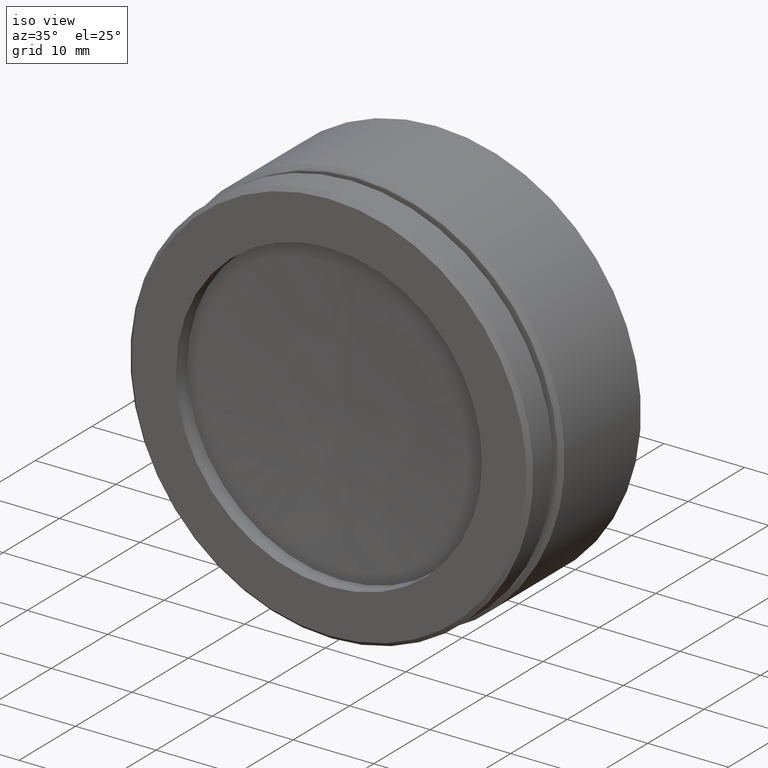
[diagram: clean part render]
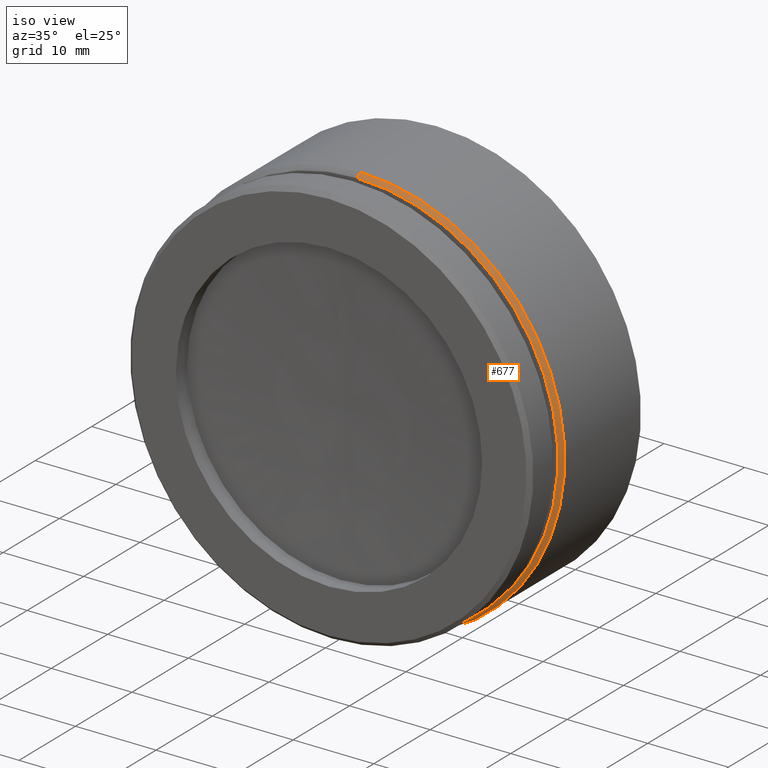
[diagram: same view with one face highlighted and labeled with its STEP entity id]
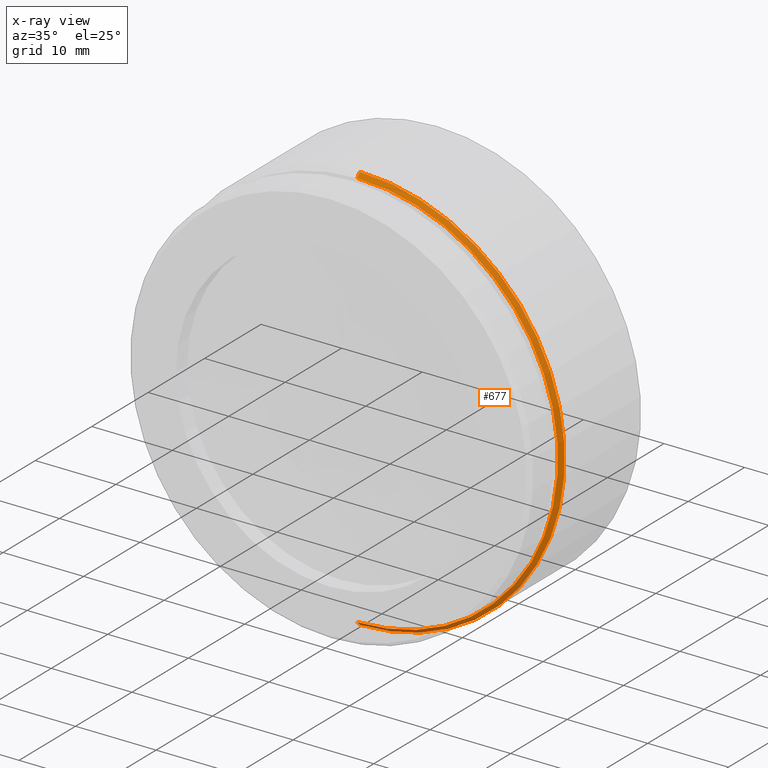
[diagram: x-ray of the same camera — body ghosted, the highlighted face saturated]
A machine part, iso view. The second image highlights one B-rep face of the part: STEP entity #677.
The next image is the same camera in x-ray: the body ghosted, the highlighted face saturated — about 0% of this face is hidden behind the body in this view.
In plain terms, the highlighted conical surface has half-angle 45 deg.
Its self-contained STEP definition (entity closure, byte-faithful):
#13 = CARTESIAN_POINT ( 'NONE',  ( -8.905217641199666190, -15.41880613057825222, 26.65036394347453097 ) ) ;
#60 = DIRECTION ( 'NONE',  ( 0.000000000000000000, 0.000000000000000000, 1.000000000000000000 ) ) ;
#115 = AXIS2_PLACEMENT_3D ( 'NONE', #563, #1100, #1616 ) ;
#132 = ORIENTED_EDGE ( 'NONE', *, *, #1614, .T. ) ;
#195 = FACE_OUTER_BOUND ( 'NONE', #1185, .T. ) ;
#208 = VECTOR ( 'NONE', #1315, 1000.000000000000114 ) ;
#254 = DIRECTION ( 'NONE',  ( 0.000000000000000000, -1.000000000000000000, 0.000000000000000000 ) ) ;
#416 = VERTEX_POINT ( 'NONE', #529 ) ;
#446 = ORIENTED_EDGE ( 'NONE', *, *, #572, .T. ) ;
#517 = LINE ( 'NONE', #528, #208 ) ;
#528 = CARTESIAN_POINT ( 'NONE',  ( -8.905217641199666190, -15.91880613057825045, 51.55036394347452955 ) ) ;
#529 = CARTESIAN_POINT ( 'NONE',  ( -8.905217641199666190, -15.91880613057825045, 51.55036394347452955 ) ) ;
#545 = DIRECTION ( 'NONE',  ( 0.000000000000000000, 0.000000000000000000, -1.000000000000000000 ) ) ;
#563 = CARTESIAN_POINT ( 'NONE',  ( -8.905217641199666190, -15.91880613057825045, 26.65036394347453097 ) ) ;
#569 = CARTESIAN_POINT ( 'NONE',  ( -8.905217641199666190, -15.91880613057825045, 26.65036394347453097 ) ) ;
#572 = EDGE_CURVE ( 'NONE', #1425, #1217, #1642, .T. ) ;
#589 = CIRCLE ( 'NONE', #115, 24.89999999999999858 ) ;
#642 = CONICAL_SURFACE ( 'NONE', #695, 24.89999999999999858, 0.7853981633974503884 ) ;
#677 = ADVANCED_FACE ( 'NONE', ( #195 ), #642, .T. ) ;
#695 = AXIS2_PLACEMENT_3D ( 'NONE', #569, #712, #60 ) ;
#712 = DIRECTION ( 'NONE',  ( 0.000000000000000000, 1.000000000000000000, 0.000000000000000000 ) ) ;
#934 = CIRCLE ( 'NONE', #1184, 25.39999999999999858 ) ;
#1052 = VECTOR ( 'NONE', #1226, 1000.000000000000114 ) ;
#1100 = DIRECTION ( 'NONE',  ( 0.000000000000000000, -1.000000000000000000, 0.000000000000000000 ) ) ;
#1160 = EDGE_CURVE ( 'NONE', #1425, #416, #589, .T. ) ;
#1161 = CARTESIAN_POINT ( 'NONE',  ( -8.905217641199662637, -15.41880613057825222, 1.250363943474531947 ) ) ;
#1184 = AXIS2_PLACEMENT_3D ( 'NONE', #13, #254, #545 ) ;
#1185 = EDGE_LOOP ( 'NONE', ( #1434, #446, #132, #1535 ) ) ;
#1195 = CARTESIAN_POINT ( 'NONE',  ( -8.905217641199662637, -15.91880613057825045, 1.750363943474532391 ) ) ;
#1217 = VERTEX_POINT ( 'NONE', #1161 ) ;
#1226 = DIRECTION ( 'NONE',  ( 8.659560562354948882E-17, 0.7071067811865460184, -0.7071067811865489050 ) ) ;
#1315 = DIRECTION ( 'NONE',  ( 0.000000000000000000, 0.7071067811865460184, 0.7071067811865489050 ) ) ;
#1374 = VERTEX_POINT ( 'NONE', #1598 ) ;
#1425 = VERTEX_POINT ( 'NONE', #1195 ) ;
#1434 = ORIENTED_EDGE ( 'NONE', *, *, #1160, .F. ) ;
#1535 = ORIENTED_EDGE ( 'NONE', *, *, #1601, .F. ) ;
#1598 = CARTESIAN_POINT ( 'NONE',  ( -8.905217641199666190, -15.41880613057825222, 52.05036394347452955 ) ) ;
#1601 = EDGE_CURVE ( 'NONE', #416, #1374, #517, .T. ) ;
#1614 = EDGE_CURVE ( 'NONE', #1217, #1374, #934, .T. ) ;
#1616 = DIRECTION ( 'NONE',  ( 0.000000000000000000, 0.000000000000000000, -1.000000000000000000 ) ) ;
#1623 = CARTESIAN_POINT ( 'NONE',  ( -8.905217641199662637, -15.91880613057825045, 1.750363943474532391 ) ) ;
#1642 = LINE ( 'NONE', #1623, #1052 ) ;